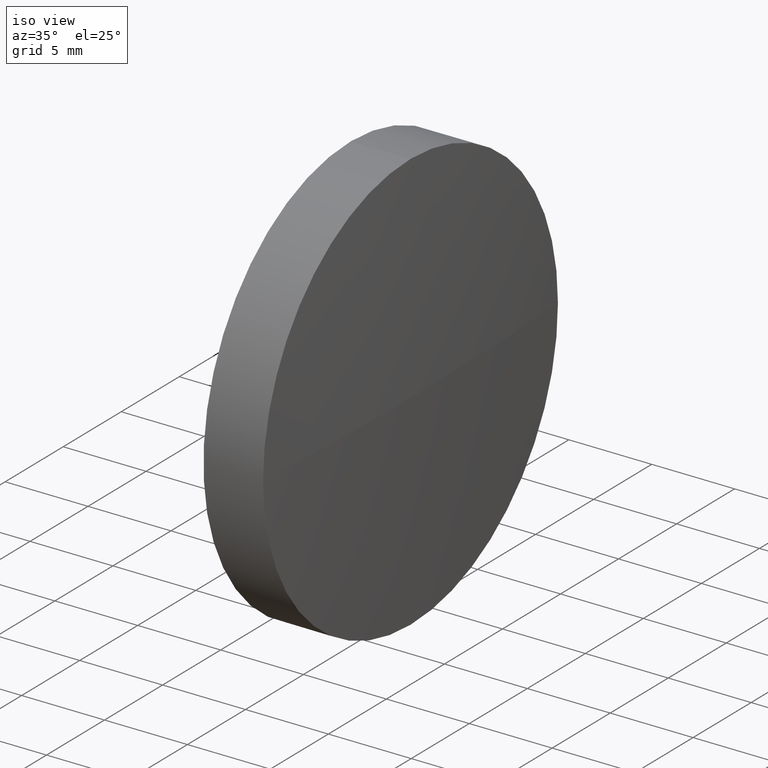
[diagram: clean part render]
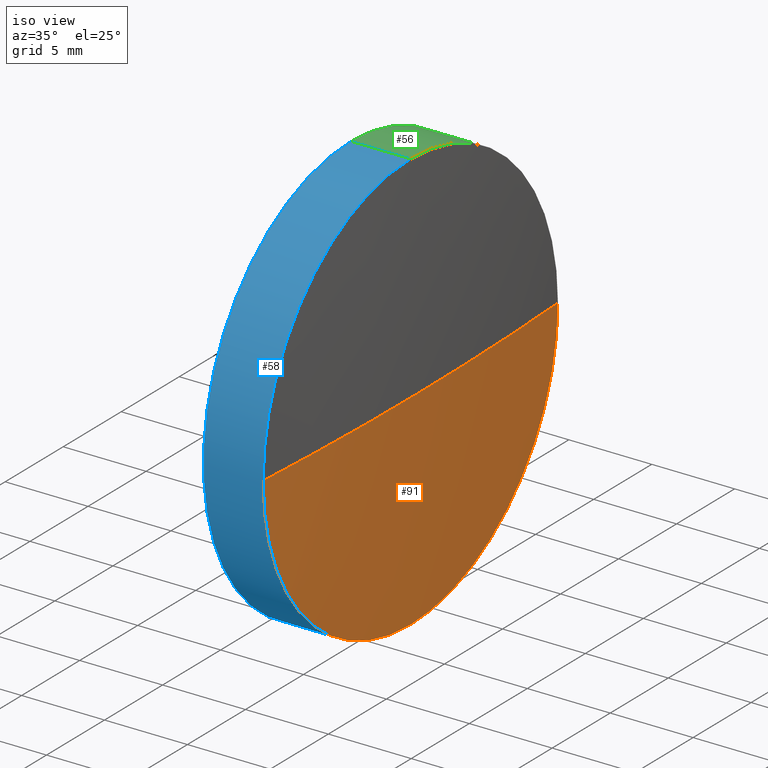
[diagram: same view with three faces highlighted in distinct colors, each labeled with its STEP entity id]
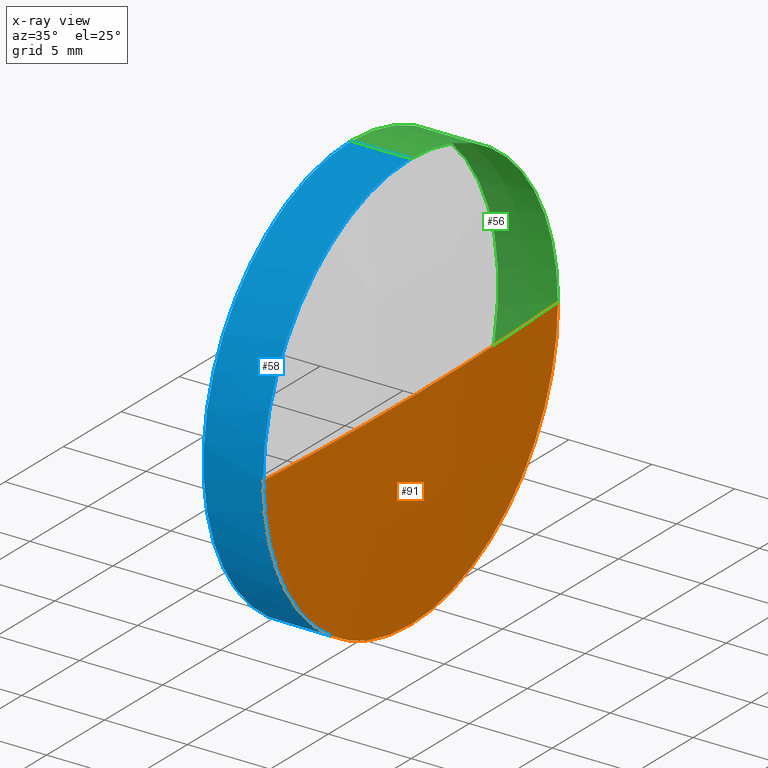
[diagram: x-ray of the same camera — body ghosted, the three highlighted faces saturated]
A machine part, iso view with three faces highlighted in distinct colors.
The next image is the same camera in x-ray (body ghosted, the three faces saturated) — at least one of them is partly hidden behind the body in this view.
Their STEP definitions:

[orange] entity #91 — the highlighted spherical surface has radius 201.812 mm.
#10 = DIRECTION ( 'NONE',  ( -0.0000000000000000000, 0.0000000000000000000, 1.000000000000000000 ) ) ;
#11 = DIRECTION ( 'NONE',  ( -0.0000000000000000000, 0.0000000000000000000, -1.000000000000000000 ) ) ;
#17 = CIRCLE ( 'NONE', #60, 201.8124999999973600 ) ;
#27 = VERTEX_POINT ( 'NONE', #166 ) ;
#28 = DIRECTION ( 'NONE',  ( 1.000000000000000000, 0.0000000000000000000, 0.0000000000000000000 ) ) ;
#54 = AXIS2_PLACEMENT_3D ( 'NONE', #160, #11, #83 ) ;
#57 = CARTESIAN_POINT ( 'NONE',  ( 351.6685238677177400, 164.5395787280306200, 0.0000000000000000000 ) ) ;
#60 = AXIS2_PLACEMENT_3D ( 'NONE', #107, #10, #28 ) ;
#63 = CIRCLE ( 'NONE', #77, 12.69999999999998900 ) ;
#64 = CARTESIAN_POINT ( 'NONE',  ( 150.2560238677204400, 151.8395787280305200, 0.0000000000000000000 ) ) ;
#66 = AXIS2_PLACEMENT_3D ( 'NONE', #64, #116, #111 ) ;
#73 = ORIENTED_EDGE ( 'NONE', *, *, #159, .T. ) ;
#76 = CARTESIAN_POINT ( 'NONE',  ( 352.0685238677178300, 151.8395787280305200, 0.0000000000000000000 ) ) ;
#77 = AXIS2_PLACEMENT_3D ( 'NONE', #81, #92, #106 ) ;
#81 = CARTESIAN_POINT ( 'NONE',  ( 351.6685238677177900, 151.8395787280306900, 0.0000000000000000000 ) ) ;
#83 = DIRECTION ( 'NONE',  ( 0.0000000000000000000, 1.000000000000000000, 0.0000000000000000000 ) ) ;
#85 = DIRECTION ( 'NONE',  ( -1.000000000000000000, -0.0000000000000000000, -0.0000000000000000000 ) ) ;
#86 = VERTEX_POINT ( 'NONE', #57 ) ;
#89 = ORIENTED_EDGE ( 'NONE', *, *, #172, .F. ) ;
#91 = ADVANCED_FACE ( 'NONE', ( #103 ), #153, .T. ) ;
#92 = DIRECTION ( 'NONE',  ( -1.000000000000000000, -0.0000000000000000000, -0.0000000000000000000 ) ) ;
#102 = EDGE_CURVE ( 'NONE', #179, #27, #63, .T. ) ;
#103 = FACE_OUTER_BOUND ( 'NONE', #154, .T. ) ;
#104 = ORIENTED_EDGE ( 'NONE', *, *, #139, .F. ) ;
#106 = DIRECTION ( 'NONE',  ( 0.0000000000000000000, 0.0000000000000000000, 1.000000000000000000 ) ) ;
#107 = CARTESIAN_POINT ( 'NONE',  ( 150.2560238677204400, 151.8395787280305200, 0.0000000000000000000 ) ) ;
#111 = DIRECTION ( 'NONE',  ( 0.0000000000000000000, 1.000000000000000000, 1.224646799147353200E-016 ) ) ;
#116 = DIRECTION ( 'NONE',  ( 0.0000000000000000000, 1.224646799147353200E-016, -1.000000000000000000 ) ) ;
#123 = CARTESIAN_POINT ( 'NONE',  ( 351.6685238677177900, 151.8395787280306900, 0.0000000000000000000 ) ) ;
#126 = CIRCLE ( 'NONE', #66, 201.8124999999973600 ) ;
#137 = VERTEX_POINT ( 'NONE', #76 ) ;
#139 = EDGE_CURVE ( 'NONE', #137, #86, #17, .T. ) ;
#145 = AXIS2_PLACEMENT_3D ( 'NONE', #123, #85, #173 ) ;
#153 = SPHERICAL_SURFACE ( 'NONE', #54, 201.8124999999973600 ) ;
#154 = EDGE_LOOP ( 'NONE', ( #104, #73, #165, #89 ) ) ;
#159 = EDGE_CURVE ( 'NONE', #137, #27, #126, .T. ) ;
#160 = CARTESIAN_POINT ( 'NONE',  ( 150.2560238677204400, 151.8395787280305200, 0.0000000000000000000 ) ) ;
#165 = ORIENTED_EDGE ( 'NONE', *, *, #102, .F. ) ;
#166 = CARTESIAN_POINT ( 'NONE',  ( 351.6685238677177400, 139.1395787280305900, -1.555301434917131900E-015 ) ) ;
#170 = CARTESIAN_POINT ( 'NONE',  ( 351.6685238677177900, 151.8395787280306900, -12.69999999999998900 ) ) ;
#172 = EDGE_CURVE ( 'NONE', #86, #179, #184, .T. ) ;
#173 = DIRECTION ( 'NONE',  ( 0.0000000000000000000, 0.0000000000000000000, 1.000000000000000000 ) ) ;
#179 = VERTEX_POINT ( 'NONE', #170 ) ;
#184 = CIRCLE ( 'NONE', #145, 12.69999999999998900 ) ;

[blue] entity #58 — the highlighted cylindrical surface (partial cylindrical patch) has radius 12.7 mm, axis along (-1, -0, -0).
#5 = AXIS2_PLACEMENT_3D ( 'NONE', #108, #26, #8 ) ;
#7 = VERTEX_POINT ( 'NONE', #74 ) ;
#8 = DIRECTION ( 'NONE',  ( 0.0000000000000000000, 0.0000000000000000000, 1.000000000000000000 ) ) ;
#9 = AXIS2_PLACEMENT_3D ( 'NONE', #25, #79, #62 ) ;
#14 = VERTEX_POINT ( 'NONE', #143 ) ;
#19 = CIRCLE ( 'NONE', #5, 12.69999999999998900 ) ;
#20 = ORIENTED_EDGE ( 'NONE', *, *, #115, .T. ) ;
#23 = LINE ( 'NONE', #42, #128 ) ;
#25 = CARTESIAN_POINT ( 'NONE',  ( 342.3303058320414600, 151.8395787280306900, 0.0000000000000000000 ) ) ;
#26 = DIRECTION ( 'NONE',  ( -1.000000000000000000, -0.0000000000000000000, -0.0000000000000000000 ) ) ;
#27 = VERTEX_POINT ( 'NONE', #166 ) ;
#33 = AXIS2_PLACEMENT_3D ( 'NONE', #55, #169, #132 ) ;
#42 = CARTESIAN_POINT ( 'NONE',  ( 342.3303058320414600, 151.8395787280306900, 12.69999999999998900 ) ) ;
#45 = LINE ( 'NONE', #133, #101 ) ;
#49 = VERTEX_POINT ( 'NONE', #146 ) ;
#55 = CARTESIAN_POINT ( 'NONE',  ( 348.0685238677178300, 151.8395787280306900, 0.0000000000000000000 ) ) ;
#58 = ADVANCED_FACE ( 'NONE', ( #68 ), #186, .T. ) ;
#61 = DIRECTION ( 'NONE',  ( -1.000000000000000000, -0.0000000000000000000, -0.0000000000000000000 ) ) ;
#62 = DIRECTION ( 'NONE',  ( 0.0000000000000000000, 0.0000000000000000000, 1.000000000000000000 ) ) ;
#63 = CIRCLE ( 'NONE', #77, 12.69999999999998900 ) ;
#68 = FACE_OUTER_BOUND ( 'NONE', #142, .T. ) ;
#74 = CARTESIAN_POINT ( 'NONE',  ( 351.6685238677177900, 151.8395787280306900, 12.69999999999998900 ) ) ;
#77 = AXIS2_PLACEMENT_3D ( 'NONE', #81, #92, #106 ) ;
#78 = ORIENTED_EDGE ( 'NONE', *, *, #152, .F. ) ;
#79 = DIRECTION ( 'NONE',  ( -1.000000000000000000, -0.0000000000000000000, -0.0000000000000000000 ) ) ;
#81 = CARTESIAN_POINT ( 'NONE',  ( 351.6685238677177900, 151.8395787280306900, 0.0000000000000000000 ) ) ;
#92 = DIRECTION ( 'NONE',  ( -1.000000000000000000, -0.0000000000000000000, -0.0000000000000000000 ) ) ;
#98 = ORIENTED_EDGE ( 'NONE', *, *, #99, .F. ) ;
#99 = EDGE_CURVE ( 'NONE', #49, #14, #157, .T. ) ;
#101 = VECTOR ( 'NONE', #61, 1000.000000000000000 ) ;
#102 = EDGE_CURVE ( 'NONE', #179, #27, #63, .T. ) ;
#106 = DIRECTION ( 'NONE',  ( 0.0000000000000000000, 0.0000000000000000000, 1.000000000000000000 ) ) ;
#108 = CARTESIAN_POINT ( 'NONE',  ( 351.6685238677177900, 151.8395787280306900, 0.0000000000000000000 ) ) ;
#115 = EDGE_CURVE ( 'NONE', #27, #7, #19, .T. ) ;
#117 = EDGE_CURVE ( 'NONE', #7, #14, #23, .T. ) ;
#120 = DIRECTION ( 'NONE',  ( -1.000000000000000000, -0.0000000000000000000, -0.0000000000000000000 ) ) ;
#122 = ORIENTED_EDGE ( 'NONE', *, *, #102, .T. ) ;
#127 = ORIENTED_EDGE ( 'NONE', *, *, #117, .T. ) ;
#128 = VECTOR ( 'NONE', #120, 1000.000000000000000 ) ;
#132 = DIRECTION ( 'NONE',  ( 0.0000000000000000000, 0.0000000000000000000, 1.000000000000000000 ) ) ;
#133 = CARTESIAN_POINT ( 'NONE',  ( 342.3303058320414600, 151.8395787280306900, -12.69999999999998900 ) ) ;
#142 = EDGE_LOOP ( 'NONE', ( #78, #122, #20, #127, #98 ) ) ;
#143 = CARTESIAN_POINT ( 'NONE',  ( 348.0685238677178300, 151.8395787280306900, 12.69999999999998900 ) ) ;
#146 = CARTESIAN_POINT ( 'NONE',  ( 348.0685238677178300, 151.8395787280306900, -12.69999999999998900 ) ) ;
#152 = EDGE_CURVE ( 'NONE', #179, #49, #45, .T. ) ;
#157 = CIRCLE ( 'NONE', #33, 12.69999999999998900 ) ;
#166 = CARTESIAN_POINT ( 'NONE',  ( 351.6685238677177400, 139.1395787280305900, -1.555301434917131900E-015 ) ) ;
#169 = DIRECTION ( 'NONE',  ( -1.000000000000000000, -0.0000000000000000000, -0.0000000000000000000 ) ) ;
#170 = CARTESIAN_POINT ( 'NONE',  ( 351.6685238677177900, 151.8395787280306900, -12.69999999999998900 ) ) ;
#179 = VERTEX_POINT ( 'NONE', #170 ) ;
#186 = CYLINDRICAL_SURFACE ( 'NONE', #9, 12.69999999999998900 ) ;

[green] entity #56 — the highlighted cylindrical surface (partial cylindrical patch) has radius 12.7 mm, axis along (-1, -0, -0).
#4 = ORIENTED_EDGE ( 'NONE', *, *, #117, .F. ) ;
#7 = VERTEX_POINT ( 'NONE', #74 ) ;
#14 = VERTEX_POINT ( 'NONE', #143 ) ;
#16 = EDGE_CURVE ( 'NONE', #7, #86, #87, .T. ) ;
#23 = LINE ( 'NONE', #42, #128 ) ;
#29 = EDGE_CURVE ( 'NONE', #14, #49, #114, .T. ) ;
#31 = ORIENTED_EDGE ( 'NONE', *, *, #16, .T. ) ;
#38 = ORIENTED_EDGE ( 'NONE', *, *, #152, .T. ) ;
#42 = CARTESIAN_POINT ( 'NONE',  ( 342.3303058320414600, 151.8395787280306900, 12.69999999999998900 ) ) ;
#45 = LINE ( 'NONE', #133, #101 ) ;
#46 = DIRECTION ( 'NONE',  ( 0.0000000000000000000, 0.0000000000000000000, 1.000000000000000000 ) ) ;
#49 = VERTEX_POINT ( 'NONE', #146 ) ;
#50 = AXIS2_PLACEMENT_3D ( 'NONE', #148, #180, #46 ) ;
#56 = ADVANCED_FACE ( 'NONE', ( #59 ), #94, .T. ) ;
#57 = CARTESIAN_POINT ( 'NONE',  ( 351.6685238677177400, 164.5395787280306200, 0.0000000000000000000 ) ) ;
#59 = FACE_OUTER_BOUND ( 'NONE', #112, .T. ) ;
#61 = DIRECTION ( 'NONE',  ( -1.000000000000000000, -0.0000000000000000000, -0.0000000000000000000 ) ) ;
#74 = CARTESIAN_POINT ( 'NONE',  ( 351.6685238677177900, 151.8395787280306900, 12.69999999999998900 ) ) ;
#85 = DIRECTION ( 'NONE',  ( -1.000000000000000000, -0.0000000000000000000, -0.0000000000000000000 ) ) ;
#86 = VERTEX_POINT ( 'NONE', #57 ) ;
#87 = CIRCLE ( 'NONE', #164, 12.69999999999998900 ) ;
#90 = CARTESIAN_POINT ( 'NONE',  ( 351.6685238677177900, 151.8395787280306900, 0.0000000000000000000 ) ) ;
#94 = CYLINDRICAL_SURFACE ( 'NONE', #50, 12.69999999999998900 ) ;
#101 = VECTOR ( 'NONE', #61, 1000.000000000000000 ) ;
#105 = DIRECTION ( 'NONE',  ( 0.0000000000000000000, 0.0000000000000000000, 1.000000000000000000 ) ) ;
#112 = EDGE_LOOP ( 'NONE', ( #119, #38, #118, #4, #31 ) ) ;
#114 = CIRCLE ( 'NONE', #181, 12.69999999999998900 ) ;
#117 = EDGE_CURVE ( 'NONE', #7, #14, #23, .T. ) ;
#118 = ORIENTED_EDGE ( 'NONE', *, *, #29, .F. ) ;
#119 = ORIENTED_EDGE ( 'NONE', *, *, #172, .T. ) ;
#120 = DIRECTION ( 'NONE',  ( -1.000000000000000000, -0.0000000000000000000, -0.0000000000000000000 ) ) ;
#123 = CARTESIAN_POINT ( 'NONE',  ( 351.6685238677177900, 151.8395787280306900, 0.0000000000000000000 ) ) ;
#128 = VECTOR ( 'NONE', #120, 1000.000000000000000 ) ;
#131 = CARTESIAN_POINT ( 'NONE',  ( 348.0685238677178300, 151.8395787280306900, 0.0000000000000000000 ) ) ;
#133 = CARTESIAN_POINT ( 'NONE',  ( 342.3303058320414600, 151.8395787280306900, -12.69999999999998900 ) ) ;
#134 = DIRECTION ( 'NONE',  ( -1.000000000000000000, -0.0000000000000000000, -0.0000000000000000000 ) ) ;
#143 = CARTESIAN_POINT ( 'NONE',  ( 348.0685238677178300, 151.8395787280306900, 12.69999999999998900 ) ) ;
#144 = DIRECTION ( 'NONE',  ( 0.0000000000000000000, 0.0000000000000000000, 1.000000000000000000 ) ) ;
#145 = AXIS2_PLACEMENT_3D ( 'NONE', #123, #85, #173 ) ;
#146 = CARTESIAN_POINT ( 'NONE',  ( 348.0685238677178300, 151.8395787280306900, -12.69999999999998900 ) ) ;
#147 = DIRECTION ( 'NONE',  ( -1.000000000000000000, -0.0000000000000000000, -0.0000000000000000000 ) ) ;
#148 = CARTESIAN_POINT ( 'NONE',  ( 342.3303058320414600, 151.8395787280306900, 0.0000000000000000000 ) ) ;
#152 = EDGE_CURVE ( 'NONE', #179, #49, #45, .T. ) ;
#164 = AXIS2_PLACEMENT_3D ( 'NONE', #90, #134, #105 ) ;
#170 = CARTESIAN_POINT ( 'NONE',  ( 351.6685238677177900, 151.8395787280306900, -12.69999999999998900 ) ) ;
#172 = EDGE_CURVE ( 'NONE', #86, #179, #184, .T. ) ;
#173 = DIRECTION ( 'NONE',  ( 0.0000000000000000000, 0.0000000000000000000, 1.000000000000000000 ) ) ;
#179 = VERTEX_POINT ( 'NONE', #170 ) ;
#180 = DIRECTION ( 'NONE',  ( -1.000000000000000000, -0.0000000000000000000, -0.0000000000000000000 ) ) ;
#181 = AXIS2_PLACEMENT_3D ( 'NONE', #131, #147, #144 ) ;
#184 = CIRCLE ( 'NONE', #145, 12.69999999999998900 ) ;